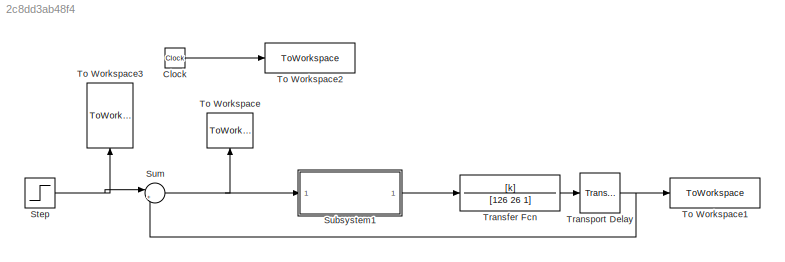
MODEL slx_2c8dd3ab48f4
KIND model
CONFIG AbsTol = auto
CONFIG EnableMultiTasking = off
CONFIG FixedStep = auto
CONFIG MaxStep = 0.1
CONFIG MinStep = auto
CONFIG RelTol = 1e-3
CONFIG SampleTimeConstraint = Unconstrained
CONFIG SolverName = VariableStepAuto
CONFIG StartTime = 0
CONFIG StopTime = t_simulation
BLOCK [Clock] Clock
BLOCK [Step] Step
  SampleTime = 0
  Time = t0
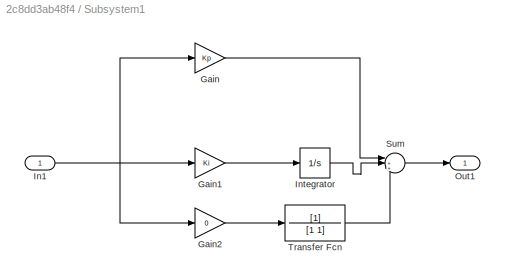
BLOCK [SubSystem] Subsystem1
BLOCK [Gain] Subsystem1/Gain
  Gain = Kp
BLOCK [Gain] Subsystem1/Gain1
  Gain = Ki
BLOCK [Gain] Subsystem1/Gain2
  Gain = 0
BLOCK [Inport] Subsystem1/In1
BLOCK [Integrator] Subsystem1/Integrator
BLOCK [Outport] Subsystem1/Out1
BLOCK [Sum] Subsystem1/Sum
  Inputs = |+++
BLOCK [TransferFcn] Subsystem1/Transfer Fcn
  Denominator = [1 1]
BLOCK [Sum] Sum
  Inputs = |+-
BLOCK [ToWorkspace] To Workspace
  FixptAsFi = on
  MaxDataPoints = inf
  NameLocation = right
  SampleTime = -1
  VariableName = e
BLOCK [ToWorkspace] To Workspace1
  FixptAsFi = on
  MaxDataPoints = inf
  SampleTime = -1
  VariableName = y
BLOCK [ToWorkspace] To Workspace2
  FixptAsFi = on
  MaxDataPoints = inf
  SampleTime = -1
  VariableName = t
BLOCK [ToWorkspace] To Workspace3
  FixptAsFi = on
  MaxDataPoints = inf
  NameLocation = right
  SampleTime = -1
  VariableName = CV
BLOCK [TransferFcn] Transfer Fcn
  Denominator = [126 26 1]
  Numerator = [k]
BLOCK [TransportDelay] Transport Delay
  DelayTime = T0
LINE Clock:1 -> To Workspace2:1
NET Step:1 -> Sum:1, To Workspace3:1
LINE Subsystem1/Gain1:1 -> Subsystem1/Integrator:1
LINE Subsystem1/Gain2:1 -> Subsystem1/Transfer Fcn:1
LINE Subsystem1/Gain:1 -> Subsystem1/Sum:1
NET Subsystem1/In1:1 -> Subsystem1/Gain1:1, Subsystem1/Gain2:1, Subsystem1/Gain:1
LINE Subsystem1/Integrator:1 -> Subsystem1/Sum:2
LINE Subsystem1/Sum:1 -> Subsystem1/Out1:1
LINE Subsystem1/Transfer Fcn:1 -> Subsystem1/Sum:3
LINE Subsystem1:1 -> Transfer Fcn:1
NET Sum:1 -> Subsystem1:1, To Workspace:1
LINE Transfer Fcn:1 -> Transport Delay:1
NET Transport Delay:1 -> Sum:2, To Workspace1:1
note: NET lines group one-source signal fan-out (src -> all destinations, sorted); 1:1 wires keep LINE
